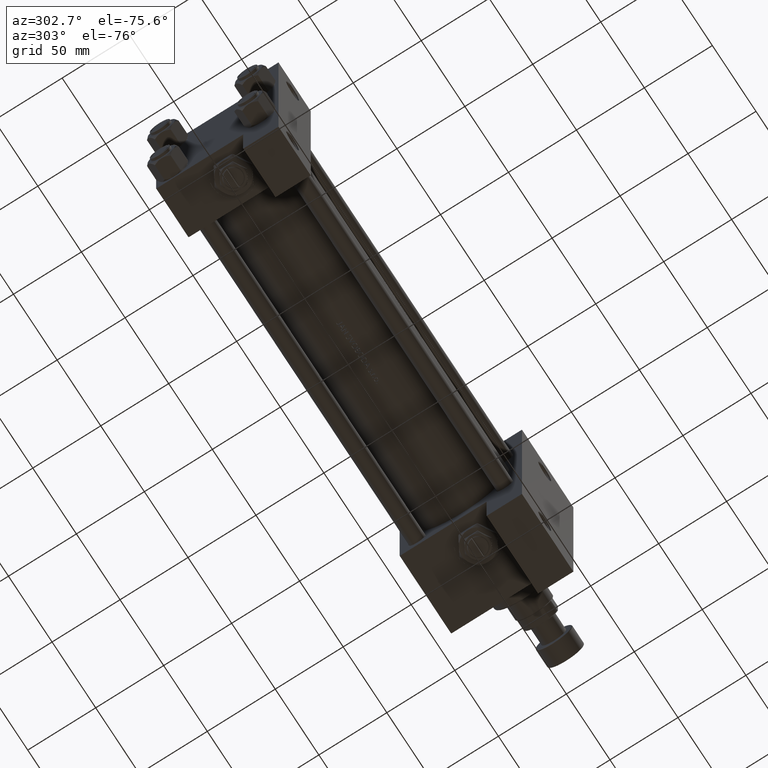
[diagram: clean part render]
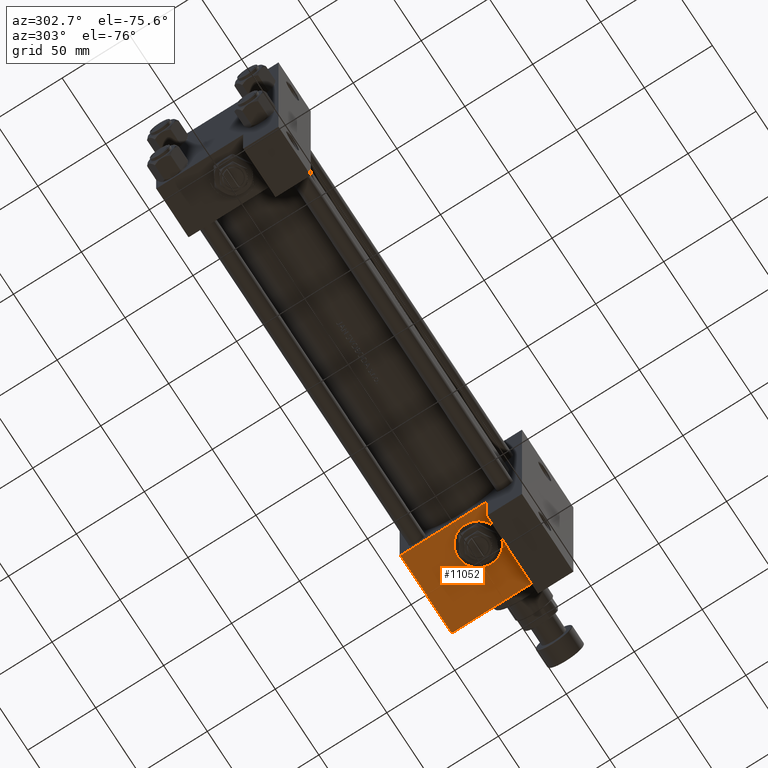
[diagram: same view with one face highlighted and labeled with its STEP entity id]
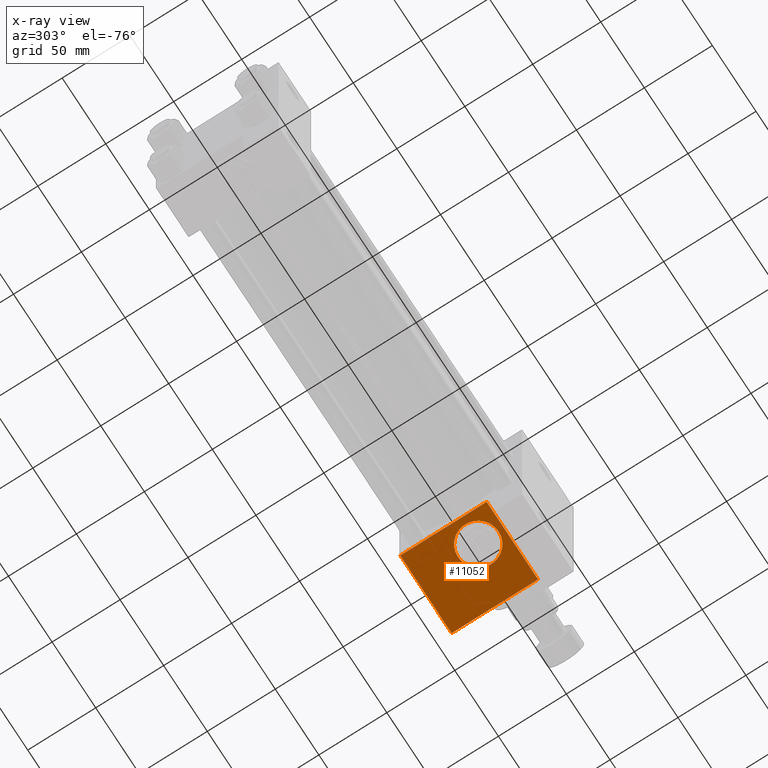
[diagram: x-ray of the same camera — body ghosted, the highlighted face saturated]
A machine part, auxiliary view. The second image highlights one B-rep face of the part: STEP entity #11052.
The next image is the same camera in x-ray: the body ghosted, the highlighted face saturated — about 0% of this face is hidden behind the body in this view.
In plain terms, the highlighted planar face has unit normal (0, 0, -1).
Its self-contained STEP definition (entity closure, byte-faithful):
#525 = ORIENTED_EDGE ( 'NONE', *, *, #6683, .F. ) ;
#1609 = VERTEX_POINT ( 'NONE', #4770 ) ;
#2085 = ORIENTED_EDGE ( 'NONE', *, *, #18906, .T. ) ;
#3398 = DIRECTION ( 'NONE',  ( 0.000000000000000000, 1.000000000000000000, 0.000000000000000000 ) ) ;
#3526 = DIRECTION ( 'NONE',  ( -0.000000000000000000, 1.000000000000000000, 0.000000000000000000 ) ) ;
#4770 = CARTESIAN_POINT ( 'NONE',  ( 299.0000000000000000, 45.00000000000001421, -15.00000000000002487 ) ) ;
#5669 = LINE ( 'NONE', #43970, #41314 ) ;
#6131 = CARTESIAN_POINT ( 'NONE',  ( 278.9999999999999432, 45.00000000000001421, 44.49999999999994316 ) ) ;
#6633 = ORIENTED_EDGE ( 'NONE', *, *, #42517, .F. ) ;
#6683 = EDGE_CURVE ( 'NONE', #1609, #44870, #10230, .T. ) ;
#7095 = FACE_BOUND ( 'NONE', #47260, .T. ) ;
#7344 = CARTESIAN_POINT ( 'NONE',  ( 337.9999999999999432, 45.00000000000001421, 45.00000000000000000 ) ) ;
#8745 = ORIENTED_EDGE ( 'NONE', *, *, #20159, .F. ) ;
#9785 = EDGE_LOOP ( 'NONE', ( #6633, #2085, #49635, #27881 ) ) ;
#10230 = CIRCLE ( 'NONE', #16727, 15.00000000000002487 ) ;
#11052 = ADVANCED_FACE ( 'NONE', ( #7095, #26641 ), #42089, .T. ) ;
#14461 = LINE ( 'NONE', #26397, #48121 ) ;
#15456 = VERTEX_POINT ( 'NONE', #49337 ) ;
#16727 = AXIS2_PLACEMENT_3D ( 'NONE', #27264, #3398, #26760 ) ;
#17664 = CARTESIAN_POINT ( 'NONE',  ( 299.0000000000000000, 45.00000000000001421, 0.000000000000000000 ) ) ;
#17685 = AXIS2_PLACEMENT_3D ( 'NONE', #7344, #3526, #30685 ) ;
#17998 = VERTEX_POINT ( 'NONE', #49806 ) ;
#18520 = DIRECTION ( 'NONE',  ( -1.000000000000000000, 1.411300455031978640E-15, -0.000000000000000000 ) ) ;
#18906 = EDGE_CURVE ( 'NONE', #34776, #17998, #5669, .T. ) ;
#20159 = EDGE_CURVE ( 'NONE', #44870, #1609, #35676, .T. ) ;
#20519 = CARTESIAN_POINT ( 'NONE',  ( 278.9999999999999432, 45.00000000000001421, 45.00000000000000000 ) ) ;
#22222 = CARTESIAN_POINT ( 'NONE',  ( 337.9999999999999432, 45.00000000000001421, 45.00000000000000000 ) ) ;
#24344 = LINE ( 'NONE', #20519, #26481 ) ;
#26397 = CARTESIAN_POINT ( 'NONE',  ( 278.9999999999999432, 45.00000000000001421, -19.00000000000000000 ) ) ;
#26481 = VECTOR ( 'NONE', #35981, 1000.000000000000000 ) ;
#26641 = FACE_OUTER_BOUND ( 'NONE', #9785, .T. ) ;
#26760 = DIRECTION ( 'NONE',  ( 0.000000000000000000, 0.000000000000000000, 1.000000000000000000 ) ) ;
#27264 = CARTESIAN_POINT ( 'NONE',  ( 299.0000000000000000, 45.00000000000001421, 0.000000000000000000 ) ) ;
#27881 = ORIENTED_EDGE ( 'NONE', *, *, #37536, .T. ) ;
#29366 = EDGE_CURVE ( 'NONE', #17998, #34864, #29812, .T. ) ;
#29812 = LINE ( 'NONE', #22222, #48800 ) ;
#30685 = DIRECTION ( 'NONE',  ( 0.000000000000000000, -0.000000000000000000, 1.000000000000000000 ) ) ;
#34121 = DIRECTION ( 'NONE',  ( 0.000000000000000000, 0.000000000000000000, 1.000000000000000000 ) ) ;
#34776 = VERTEX_POINT ( 'NONE', #6131 ) ;
#34864 = VERTEX_POINT ( 'NONE', #38076 ) ;
#35676 = CIRCLE ( 'NONE', #48483, 15.00000000000002487 ) ;
#35981 = DIRECTION ( 'NONE',  ( 0.000000000000000000, 0.000000000000000000, -1.000000000000000000 ) ) ;
#36836 = CARTESIAN_POINT ( 'NONE',  ( 299.0000000000000000, 45.00000000000001421, 15.00000000000002487 ) ) ;
#37536 = EDGE_CURVE ( 'NONE', #34864, #15456, #14461, .T. ) ;
#38076 = CARTESIAN_POINT ( 'NONE',  ( 337.9999999999999432, 44.99999999999992895, -19.00000000000000000 ) ) ;
#41314 = VECTOR ( 'NONE', #48010, 1000.000000000000000 ) ;
#42089 = PLANE ( 'NONE',  #17685 ) ;
#42517 = EDGE_CURVE ( 'NONE', #34776, #15456, #24344, .T. ) ;
#43970 = CARTESIAN_POINT ( 'NONE',  ( 337.9999999999999432, 45.00000000000001421, 44.49999999999994316 ) ) ;
#44870 = VERTEX_POINT ( 'NONE', #36836 ) ;
#45257 = DIRECTION ( 'NONE',  ( 0.000000000000000000, 0.000000000000000000, -1.000000000000000000 ) ) ;
#47260 = EDGE_LOOP ( 'NONE', ( #8745, #525 ) ) ;
#48010 = DIRECTION ( 'NONE',  ( 1.000000000000000000, 0.000000000000000000, 0.000000000000000000 ) ) ;
#48121 = VECTOR ( 'NONE', #18520, 1000.000000000000000 ) ;
#48483 = AXIS2_PLACEMENT_3D ( 'NONE', #17664, #49058, #34121 ) ;
#48800 = VECTOR ( 'NONE', #45257, 1000.000000000000000 ) ;
#49058 = DIRECTION ( 'NONE',  ( 0.000000000000000000, 1.000000000000000000, 0.000000000000000000 ) ) ;
#49337 = CARTESIAN_POINT ( 'NONE',  ( 278.9999999999999432, 45.00000000000001421, -18.99999999999997513 ) ) ;
#49635 = ORIENTED_EDGE ( 'NONE', *, *, #29366, .T. ) ;
#49806 = CARTESIAN_POINT ( 'NONE',  ( 337.9999999999999432, 45.00000000000001421, 44.49999999999994316 ) ) ;